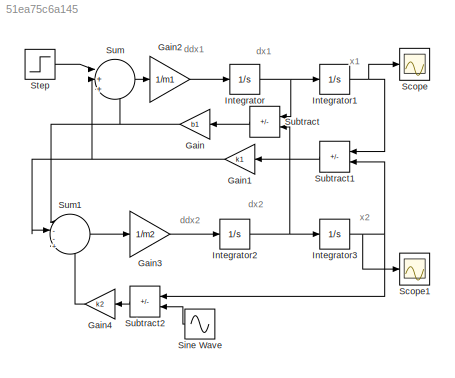
MODEL slx_51ea75c6a145
KIND model
CONFIG AbsTol = auto
CONFIG EnableMultiTasking = off
CONFIG FixedStep = auto
CONFIG MaxStep = auto
CONFIG MinStep = auto
CONFIG RelTol = 1e-3
CONFIG SampleTimeConstraint = Unconstrained
CONFIG SolverName = VariableStepAuto
CONFIG StartTime = 0.0
CONFIG StopTime = 20
BLOCK [Gain] Gain
  Gain = b1
  NameLocation = top
BLOCK [Gain] Gain1
  Gain = k1
  NameLocation = top
BLOCK [Gain] Gain2
  Gain = 1/m1
BLOCK [Gain] Gain3
  Gain = 1/m2
BLOCK [Gain] Gain4
  Gain = k2
  NameLocation = top
BLOCK [Integrator] Integrator
BLOCK [Integrator] Integrator1
BLOCK [Integrator] Integrator2
BLOCK [Integrator] Integrator3
BLOCK [Scope] Scope
  Floating = off
  NumInputPorts = 1
  ScopeSpecificationString = Simulink.scopes.TimeScopeBlockCfg('CurrentConfiguration', extmgr.ConfigurationSet(extmgr.Configuration('Core','General UI',true),extmgr.Configuration('Core','Source UI',true),extmgr.Configuration('Sources','WiredSimulink',true),extmgr.Configuration('Visuals','Time Domain',true,'SerializedDisplays',{struct('MinYLimReal','-0.07017','MaxYLimReal','0.0804','YLabelReal','','MinYLimMag','0.00000','MaxYL...<+1446ch>
BLOCK [Scope] Scope1
  Floating = off
  NumInputPorts = 1
  ScopeSpecificationString = Simulink.scopes.TimeScopeBlockCfg('CurrentConfiguration', extmgr.ConfigurationSet(extmgr.Configuration('Core','General UI',true),extmgr.Configuration('Core','Source UI',true),extmgr.Configuration('Sources','WiredSimulink',true,'DataLoggingVariableName','ScopeData1'),extmgr.Configuration('Visuals','Time Domain',true,'SerializedDisplays',{struct('MinYLimReal','-0.06637','MaxYLimReal','0.07083','YLab...<+1489ch>
BLOCK [Sin] Sine Wave
  Amplitude = 0.05
  Frequency = 0.5*pi
  NameLocation = top
  SampleTime = 0
BLOCK [Step] Step
  After = 0
  SampleTime = 0
  Time = 0
BLOCK [Sum] Subtract
  IconShape = rectangular
  Inputs = -+
  NameLocation = top
BLOCK [Sum] Subtract1
  IconShape = rectangular
  Inputs = -+
  NameLocation = top
BLOCK [Sum] Subtract2
  IconShape = rectangular
  Inputs = -+
  NameLocation = top
BLOCK [Sum] Sum
  Inputs = |+++
BLOCK [Sum] Sum1
  Inputs = |--++
ANNOTATION (root): ddx1
ANNOTATION (root): ddx2
ANNOTATION (root): dx1
ANNOTATION (root): dx2
ANNOTATION (root): x1
ANNOTATION (root): x2
NET Gain1:1 -> Sum1:2, Sum:2
LINE Gain2:1 -> Integrator:1
LINE Gain3:1 -> Integrator2:1
LINE Gain4:1 -> Sum1:4
NET Gain:1 -> Sum1:1, Sum:3
NET Integrator1:1 -> Scope:1, Subtract1:1
NET Integrator2:1 -> Integrator3:1, Subtract:2
NET Integrator3:1 -> Scope1:1, Subtract1:2, Subtract2:1
NET Integrator:1 -> Integrator1:1, Subtract:1
LINE Sine Wave:1 -> Subtract2:2
LINE Step:1 -> Sum:1
LINE Subtract1:1 -> Gain1:1
LINE Subtract2:1 -> Gain4:1
LINE Subtract:1 -> Gain:1
LINE Sum1:1 -> Gain3:1
LINE Sum:1 -> Gain2:1
note: NET lines group one-source signal fan-out (src -> all destinations, sorted); 1:1 wires keep LINE
